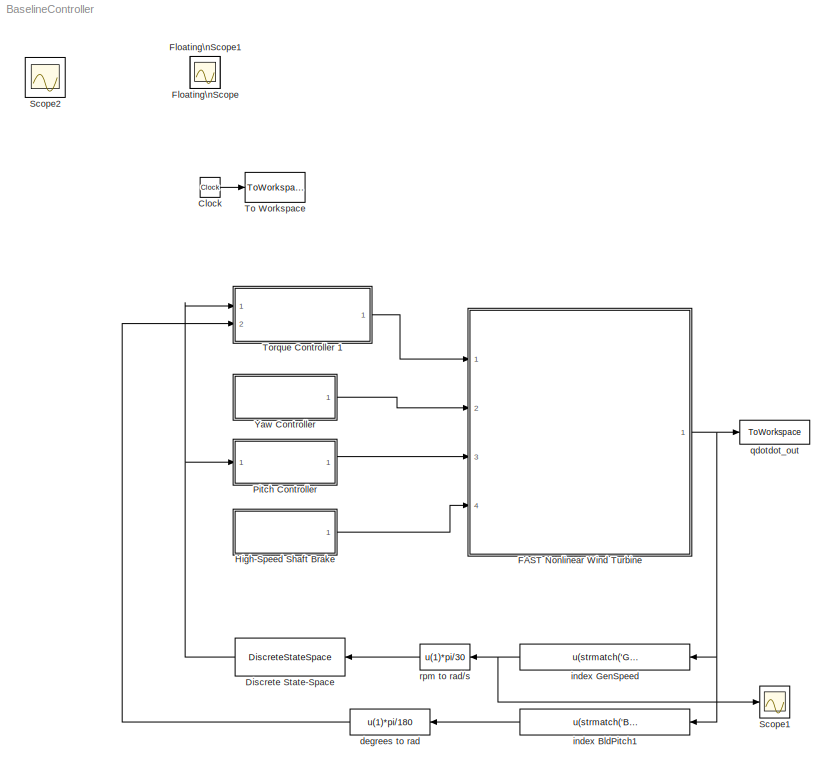
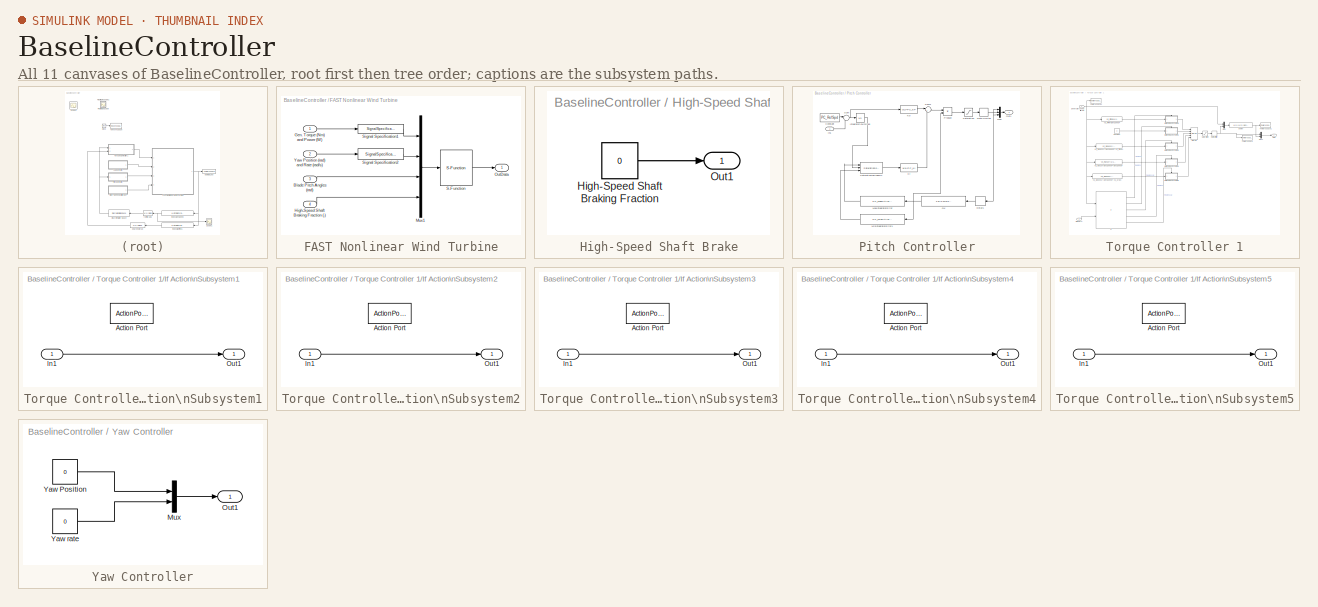
[diagram: thumbnail index - all 11 canvases of the model, root first then tree order]
MODEL BaselineController
KIND model
BLOCK [Clock] Clock
  SID = 91
BLOCK [DiscreteStateSpace] Discrete State-Space
  A = alpha
  B = 1-alpha
  C = alpha
  D = 1-alpha
  InitialCondition = 122.40808744489746
  SID = 168
  SampleTime = DT
BLOCK [SubSystem] FAST Nonlinear Wind Turbine
  Ports = [4, 1]
  RequestExecContextInheritance = off
  SID = 26
  Variant = off
BLOCK [Inport] FAST Nonlinear Wind Turbine/Blade Pitch Angles (rad)
  IconDisplay = Port number
  Port = 3
  SID = 29
BLOCK [Inport] FAST Nonlinear Wind Turbine/Gen. Torque (Nm) and Power (W)
  IconDisplay = Port number
  SID = 27
BLOCK [Inport] FAST Nonlinear Wind Turbine/High-Speed Shaft Braking Fraction (-)
  IconDisplay = Port number
  Port = 4
  SID = 30
BLOCK [Mux] FAST Nonlinear Wind Turbine/Mux1
  DisplayOption = bar
  Ports = [4, 1]
  SID = 31
BLOCK [Outport] FAST Nonlinear Wind Turbine/OutData
  IconDisplay = Port number
  SID = 35
BLOCK [S-Function] FAST Nonlinear Wind Turbine/S-Function
  EnableBusSupport = off
  FunctionName = FAST_SFunc
  Parameters = FAST_InputFileName, TMax, 0
  Ports = [1, 1]
  SFcnIsStateOwnerBlock = off
  SFunctionDeploymentMode = off
  SID = 32
BLOCK [SignalSpecification] FAST Nonlinear Wind Turbine/Signal Specification1
  Dimensions = 2
  OutDataTypeStr = double
  SID = 33
  SignalType = real
BLOCK [SignalSpecification] FAST Nonlinear Wind Turbine/Signal Specification2
  Dimensions = 2
  OutDataTypeStr = double
  SID = 34
  SignalType = real
BLOCK [Inport] FAST Nonlinear Wind Turbine/Yaw Position (rad) and Rate (rad//s)
  IconDisplay = Port number
  Port = 2
  SID = 28
BLOCK [Scope] Floating\nScope
  IOType = viewer
  NumInputPorts = 1
  Ports = []
  SID = 147
  ScopeSpecificationString = Simulink.scopes.TimeScopeBlockCfg('CurrentConfiguration', extmgr.ConfigurationSet(extmgr.Configuration('Core','General UI',true),extmgr.Configuration('Core','Source UI',true),extmgr.Configuration('Sources','WiredSimulink',true,'DataLoggingVariableName','ScopeData1','DataLoggingSaveFormat','StructureWithTime','DataLoggingLimitDataPoints',true,'DataLoggingDecimation','1','DataLoggingDecimateData',tr...<+929ch>
BLOCK [Scope] Floating\nScope1
  IOType = viewer
  NumInputPorts = 1
  Ports = []
  SID = 148
  ScopeSpecificationString = C++SS(StrPVP('Location','[207, 245, 1311, 700]'),StrPVP('Open','off'),MxPVP('AxesTitles',53,'struct(''axes1'',''%<SignalLabel>'')'),MxPVP('ScopeGraphics',56,'struct(''FigureColor'',''[0.5 0.5 0.5]'',''AxesColor'',''[0 0 0]'',''AxesTickColor'',''[1 1 1]'',''LineColors'',''[1 1 0;1 0 1;0 1 1;1 0 0;0 1 0;0 0 1]'',''LineStyles'',''-|-|-|-|-|-'',''LineWidths'',''[0.5 0.5 0.5 0.5 0.5 0.5]'',''MarkerStyl...<+278ch>
BLOCK [SubSystem] High-Speed Shaft Brake
  Ports = [0, 1]
  RequestExecContextInheritance = off
  SID = 45
  Variant = off
BLOCK [Constant] High-Speed Shaft Brake/High-Speed Shaft Braking Fraction
  SID = 46
  Value = 0
BLOCK [Outport] High-Speed Shaft Brake/Out1
  IconDisplay = Port number
  SID = 47
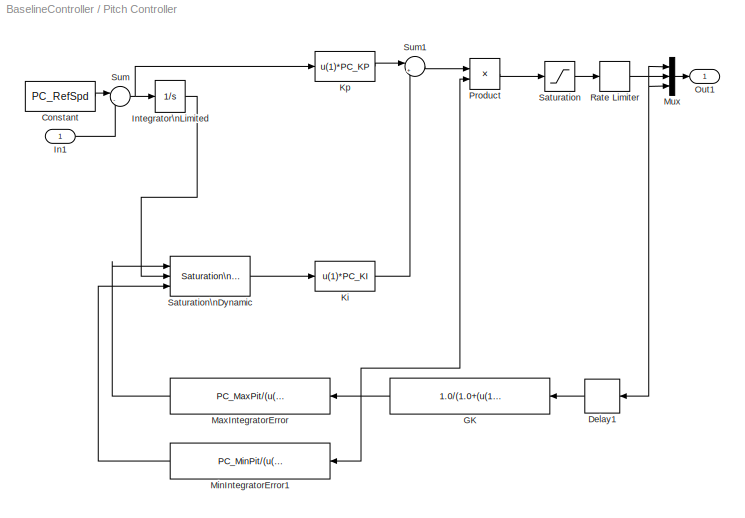
BLOCK [SubSystem] Pitch Controller
  Ports = [1, 1]
  RequestExecContextInheritance = off
  SID = 48
  Variant = off
BLOCK [Constant] Pitch Controller/Constant
  SID = 111
  Value = PC_RefSpd
BLOCK [Delay] Pitch Controller/Delay1
  DelayLength = 1
  InitialCondition = 0
  InputPortMap = u0
  Ports = [1, 1]
  SID = 141
  SampleTime = DT
  UseCircularBuffer = on
BLOCK [Fcn] Pitch Controller/GK
  Expr = 1.0/(1.0+(u(1)/PC_KK))
  SID = 135
BLOCK [Inport] Pitch Controller/In1
  IconDisplay = Port number
  SID = 112
BLOCK [Integrator] Pitch Controller/Integrator\nLimited
  LowerSaturationLimit = PC_MinPit
  Ports = [1, 1]
  SID = 115
  UpperSaturationLimit = PC_MaxPit
BLOCK [Fcn] Pitch Controller/Ki
  Expr = u(1)*PC_KI
  SID = 131
BLOCK [Fcn] Pitch Controller/Kp
  Expr = u(1)*PC_KP
  SID = 127
BLOCK [Fcn] Pitch Controller/MaxIntegratorError
  Expr = PC_MaxPit/(u(1)*PC_KI)
  SID = 126
BLOCK [Fcn] Pitch Controller/MinIntegratorError1
  Expr = PC_MinPit/(u(1)*PC_KI)
  SID = 138
BLOCK [Mux] Pitch Controller/Mux
  DisplayOption = bar
  Inputs = 3
  Ports = [3, 1]
  SID = 136
BLOCK [Outport] Pitch Controller/Out1
  IconDisplay = Port number
  SID = 50
BLOCK [Product] Pitch Controller/Product
  InputSameDT = off
  OutDataTypeStr = Inherit: Inherit via internal rule
  Ports = [2, 1]
  RndMeth = Floor
  SID = 129
  SaturateOnIntegerOverflow = off
BLOCK [RateLimiter] Pitch Controller/Rate Limiter
  FallingSlewLimit = -PC_MaxRat
  RisingSlewLimit = PC_MaxRat
  SID = 132
  SampleTimeMode = inherited
BLOCK [Saturate] Pitch Controller/Saturation
  InputPortMap = u0
  LowerLimit = PC_MinPit
  Ports = [1, 1]
  SID = 133
  UpperLimit = PC_MaxPit
BLOCK [Reference] Pitch Controller/Saturation\nDynamic  REF=simulink/Discontinuities/Saturation\nDynamic
  DoSatur = off
  LockScale = off
  OutDataType = fixdt(1, 16)
  OutDataTypeStr = Inherit: Same as second input
  OutMax = []
  OutMin = []
  OutScaling = 2^-10
  OutputDataTypeScalingMode = Same as second input
  Ports = [3, 1]
  RndMeth = Floor
  SID = 139
  SourceBlock = simulink/Discontinuities/Saturation\nDynamic
  SourceProductBaseCode = SL
  SourceProductName = Simulink
  SourceType = Saturation Dynamic
BLOCK [Sum] Pitch Controller/Sum
  IconShape = round
  InputSameDT = off
  Inputs = |-+
  OutDataTypeStr = Inherit: Inherit via internal rule
  Ports = [2, 1]
  SID = 113
  SaturateOnIntegerOverflow = off
BLOCK [Sum] Pitch Controller/Sum1
  IconShape = round
  InputSameDT = off
  Inputs = |++
  OutDataTypeStr = Inherit: Inherit via internal rule
  Ports = [2, 1]
  SID = 130
  SaturateOnIntegerOverflow = off
BLOCK [Scope] Scope1
  NumInputPorts = 1
  Ports = [1]
  SID = 56
  ScopeSpecificationString = C++SS(StrPVP('Location','[1, 574, 936, 1079]'),StrPVP('Open','off'),StrPVP('ZoomMode','yonly'),MxPVP('AxesTitles',53,'struct(''axes1'',''%<SignalLabel>'')'),MxPVP('ScopeGraphics',56,'struct(''FigureColor'',''[0.5 0.5 0.5]'',''AxesColor'',''[0 0 0]'',''AxesTickColor'',''[1 1 1]'',''LineColors'',''[1 1 0;1 0 1;0 1 1;1 0 0;0 1 0;0 0 1]'',''LineStyles'',''-|-|-|-|-|-'',''LineWidths'',''[0.5 0.5 0.5 0....<+308ch>
BLOCK [Scope] Scope2
  IOType = viewer
  NumInputPorts = 1
  Ports = []
  SID = 93
  ScopeSpecificationString = Simulink.scopes.TimeScopeBlockCfg('CurrentConfiguration', extmgr.ConfigurationSet(extmgr.Configuration('Core','General UI',true),extmgr.Configuration('Core','Source UI',true),extmgr.Configuration('Sources','WiredSimulink',true,'DataLoggingVariableName','ScopeData1','DataLoggingMaxPoints','7500','DataLoggingLimitDataPoints',true,'DataLoggingSaveFormat','Array','DataLoggingDecimation','1','DataLoggi...<+1668ch>
BLOCK [ToWorkspace] To Workspace
  MaxDataPoints = inf
  Ports = [1]
  SID = 92
  SampleTime = -1
  VariableName = Time
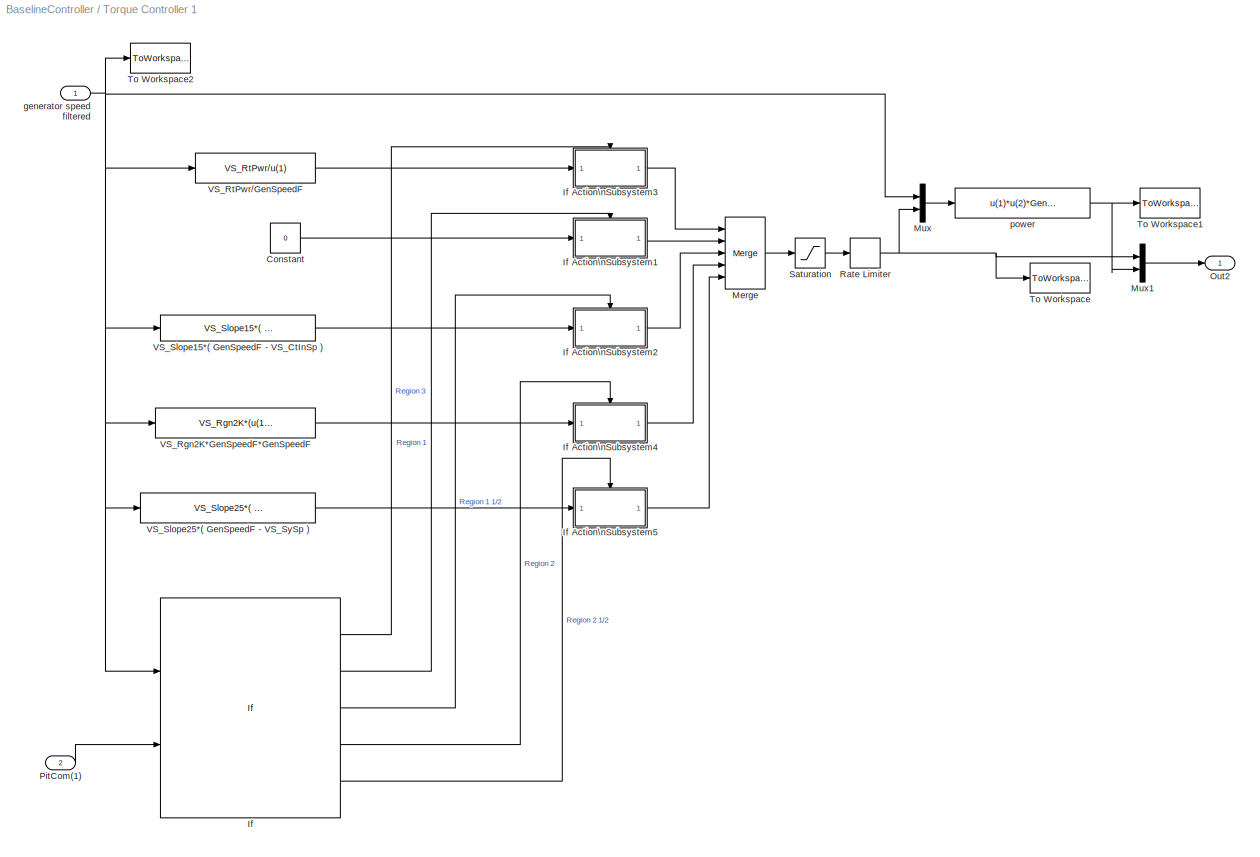
BLOCK [SubSystem] Torque Controller 1
  Ports = [2, 1]
  RequestExecContextInheritance = off
  SID = 1
  Variant = off
BLOCK [Constant] Torque Controller 1/Constant
  SID = 75
  Value = 0
BLOCK [If] Torque Controller 1/If
  ElseIfExpressions = u1< VS_CtInSp, u1 < VS_Rgn2Sp, u1 < VS_TrGnSp
  IfExpression = u1 >= VS_RtGnSp | u2>= VS_Rgn3MP
  NumInputs = 2
  Ports = [2, 5]
  SID = 3
BLOCK [SubSystem] Torque Controller 1/If Action\nSubsystem1
  Ports = [1, 1, 0, 0, 0, 0, 0, 1]
  RequestExecContextInheritance = off
  SID = 8
  TreatAsAtomicUnit = on
  Variant = off
BLOCK [ActionPort] Torque Controller 1/If Action\nSubsystem1/Action Port
  ActionType = elseif
  SID = 10
BLOCK [Inport] Torque Controller 1/If Action\nSubsystem1/In1
  IconDisplay = Port number
  SID = 9
BLOCK [Outport] Torque Controller 1/If Action\nSubsystem1/Out1
  IconDisplay = Port number
  SID = 11
BLOCK [SubSystem] Torque Controller 1/If Action\nSubsystem2
  Ports = [1, 1, 0, 0, 0, 0, 0, 1]
  RequestExecContextInheritance = off
  SID = 12
  TreatAsAtomicUnit = on
  Variant = off
BLOCK [ActionPort] Torque Controller 1/If Action\nSubsystem2/Action Port
  ActionType = elseif
  SID = 14
BLOCK [Inport] Torque Controller 1/If Action\nSubsystem2/In1
  IconDisplay = Port number
  SID = 13
BLOCK [Outport] Torque Controller 1/If Action\nSubsystem2/Out1
  IconDisplay = Port number
  SID = 15
BLOCK [SubSystem] Torque Controller 1/If Action\nSubsystem3
  Ports = [1, 1, 0, 0, 0, 0, 0, 1]
  RequestExecContextInheritance = off
  SID = 66
  TreatAsAtomicUnit = on
  Variant = off
BLOCK [ActionPort] Torque Controller 1/If Action\nSubsystem3/Action Port
  ActionType = then
  SID = 68
BLOCK [Inport] Torque Controller 1/If Action\nSubsystem3/In1
  IconDisplay = Port number
  SID = 67
BLOCK [Outport] Torque Controller 1/If Action\nSubsystem3/Out1
  IconDisplay = Port number
  SID = 69
BLOCK [SubSystem] Torque Controller 1/If Action\nSubsystem4
  Ports = [1, 1, 0, 0, 0, 0, 0, 1]
  RequestExecContextInheritance = off
  SID = 70
  TreatAsAtomicUnit = on
  Variant = off
BLOCK [ActionPort] Torque Controller 1/If Action\nSubsystem4/Action Port
  ActionType = elseif
  SID = 72
BLOCK [Inport] Torque Controller 1/If Action\nSubsystem4/In1
  IconDisplay = Port number
  SID = 71
BLOCK [Outport] Torque Controller 1/If Action\nSubsystem4/Out1
  IconDisplay = Port number
  SID = 73
BLOCK [SubSystem] Torque Controller 1/If Action\nSubsystem5
  Ports = [1, 1, 0, 0, 0, 0, 0, 1]
  RequestExecContextInheritance = off
  SID = 77
  TreatAsAtomicUnit = on
  Variant = off
BLOCK [ActionPort] Torque Controller 1/If Action\nSubsystem5/Action Port
  ActionType = else
  SID = 79
BLOCK [Inport] Torque Controller 1/If Action\nSubsystem5/In1
  IconDisplay = Port number
  SID = 78
BLOCK [Outport] Torque Controller 1/If Action\nSubsystem5/Out1
  IconDisplay = Port number
  SID = 80
BLOCK [Merge] Torque Controller 1/Merge
  Inputs = 5
  Ports = [5, 1]
  SID = 16
BLOCK [Mux] Torque Controller 1/Mux
  DisplayOption = bar
  Inputs = 2
  Ports = [2, 1]
  SID = 103
BLOCK [Mux] Torque Controller 1/Mux1
  DisplayOption = bar
  Inputs = 2
  Ports = [2, 1]
  SID = 104
BLOCK [Outport] Torque Controller 1/Out2
  IconDisplay = Port number
  SID = 25
BLOCK [Inport] Torque Controller 1/PitCom(1)
  IconDisplay = Port number
  Port = 2
  SID = 98
BLOCK [RateLimiter] Torque Controller 1/Rate Limiter
  FallingSlewLimit = -VS_MaxRat
  RisingSlewLimit = VS_MaxRat
  SID = 86
  SampleTimeMode = inherited
BLOCK [Saturate] Torque Controller 1/Saturation
  InputPortMap = u0
  LowerLimit = 0
  Ports = [1, 1]
  SID = 85
  UpperLimit = VS_MaxTq
BLOCK [ToWorkspace] Torque Controller 1/To Workspace
  MaxDataPoints = inf
  Ports = [1]
  SID = 156
  SampleTime = -1
  VariableName = generatorout
BLOCK [ToWorkspace] Torque Controller 1/To Workspace1
  MaxDataPoints = inf
  Ports = [1]
  SID = 157
  SampleTime = -1
  VariableName = powerout
BLOCK [ToWorkspace] Torque Controller 1/To Workspace2
  MaxDataPoints = inf
  Ports = [1]
  SID = 158
  SampleTime = -1
  VariableName = gsfiltered
BLOCK [Fcn] Torque Controller 1/VS_Rgn2K*GenSpeedF*GenSpeedF
  Expr = VS_Rgn2K*(u(1)^2)
  SID = 81
BLOCK [Fcn] Torque Controller 1/VS_RtPwr//GenSpeedF
  Expr = VS_RtPwr/u(1)
  SID = 74
BLOCK [Fcn] Torque Controller 1/VS_Slope15*( GenSpeedF - VS_CtInSp )
  Expr = VS_Slope15*( u(1) - VS_CtInSp )
  SID = 76
BLOCK [Fcn] Torque Controller 1/VS_Slope25*( GenSpeedF - VS_SySp )
  Expr = VS_Slope25*( u(1) - VS_SySp )
  SID = 84
BLOCK [Inport] Torque Controller 1/generator speed filtered
  IconDisplay = Port number
  SID = 2
BLOCK [Fcn] Torque Controller 1/power
  Expr = u(1)*u(2)*GenEff/100
  SID = 101
BLOCK [SubSystem] Yaw Controller
  Ports = [0, 1]
  RequestExecContextInheritance = off
  SID = 51
  Variant = off
BLOCK [Mux] Yaw Controller/Mux
  DisplayOption = bar
  Inputs = 2
  Ports = [2, 1]
  SID = 52
BLOCK [Outport] Yaw Controller/Out1
  IconDisplay = Port number
  SID = 55
BLOCK [Constant] Yaw Controller/Yaw Position
  SID = 53
  Value = 0
BLOCK [Constant] Yaw Controller/Yaw rate
  SID = 54
  Value = 0
BLOCK [Fcn] degrees to rad
  Expr = u(1)*pi/180
  SID = 100
BLOCK [Fcn] index BldPitch1
  Expr = u(strmatch('BldPitch1', OutList))
  SID = 99
BLOCK [Fcn] index GenSpeed
  Expr = u(strmatch('GenSpeed', OutList))
  SID = 87
BLOCK [ToWorkspace] qdotdot_out
  MaxDataPoints = inf
  Ports = [1]
  SID = 57
  SampleTime = -1
  VariableName = OutData
BLOCK [Fcn] rpm to rad//s
  Expr = u(1)*pi/30
  SID = 88
  SampleTime = DT
LINE Clock:1 -> To Workspace:1
NET Discrete State-Space:1 -> Pitch Controller:1, Torque Controller 1:1
LINE FAST Nonlinear Wind Turbine/Blade Pitch Angles (rad):1 -> FAST Nonlinear Wind Turbine/Mux1:3
LINE FAST Nonlinear Wind Turbine/Gen. Torque (Nm) and Power (W):1 -> FAST Nonlinear Wind Turbine/Signal Specification1:1
LINE FAST Nonlinear Wind Turbine/High-Speed Shaft Braking Fraction (-):1 -> FAST Nonlinear Wind Turbine/Mux1:4
LINE FAST Nonlinear Wind Turbine/Mux1:1 -> FAST Nonlinear Wind Turbine/S-Function:1
LINE FAST Nonlinear Wind Turbine/S-Function:1 -> FAST Nonlinear Wind Turbine/OutData:1
LINE FAST Nonlinear Wind Turbine/Signal Specification1:1 -> FAST Nonlinear Wind Turbine/Mux1:1
LINE FAST Nonlinear Wind Turbine/Signal Specification2:1 -> FAST Nonlinear Wind Turbine/Mux1:2
LINE FAST Nonlinear Wind Turbine/Yaw Position (rad) and Rate (rad//s):1 -> FAST Nonlinear Wind Turbine/Signal Specification2:1
NET FAST Nonlinear Wind Turbine:1 -> index BldPitch1:1, index GenSpeed:1, qdotdot_out:1
LINE High-Speed Shaft Brake/High-Speed Shaft Braking Fraction:1 -> High-Speed Shaft Brake/Out1:1
LINE High-Speed Shaft Brake:1 -> FAST Nonlinear Wind Turbine:4
LINE Pitch Controller/Constant:1 -> Pitch Controller/Sum:1
LINE Pitch Controller/Delay1:1 -> Pitch Controller/GK:1
NET Pitch Controller/GK:1 -> Pitch Controller/MaxIntegratorError:1, Pitch Controller/MinIntegratorError1:1, Pitch Controller/Product:2
LINE Pitch Controller/In1:1 -> Pitch Controller/Sum:2
LINE Pitch Controller/Integrator\nLimited:1 -> Pitch Controller/Saturation\nDynamic:2
LINE Pitch Controller/Ki:1 -> Pitch Controller/Sum1:2
LINE Pitch Controller/Kp:1 -> Pitch Controller/Sum1:1
LINE Pitch Controller/MaxIntegratorError:1 -> Pitch Controller/Saturation\nDynamic:1
LINE Pitch Controller/MinIntegratorError1:1 -> Pitch Controller/Saturation\nDynamic:3
LINE Pitch Controller/Mux:1 -> Pitch Controller/Out1:1
LINE Pitch Controller/Product:1 -> Pitch Controller/Saturation:1
NET Pitch Controller/Rate Limiter:1 -> Pitch Controller/Delay1:1, Pitch Controller/Mux:1, Pitch Controller/Mux:2, Pitch Controller/Mux:3
LINE Pitch Controller/Saturation:1 -> Pitch Controller/Rate Limiter:1
LINE Pitch Controller/Saturation\nDynamic:1 -> Pitch Controller/Ki:1
LINE Pitch Controller/Sum1:1 -> Pitch Controller/Product:1
NET Pitch Controller/Sum:1 -> Pitch Controller/Integrator\nLimited:1, Pitch Controller/Kp:1
LINE Pitch Controller:1 -> FAST Nonlinear Wind Turbine:3
LINE Torque Controller 1/Constant:1 -> Torque Controller 1/If Action\nSubsystem1:1
LINE Torque Controller 1/If Action\nSubsystem1/In1:1 -> Torque Controller 1/If Action\nSubsystem1/Out1:1
LINE Torque Controller 1/If Action\nSubsystem1:1 -> Torque Controller 1/Merge:2
LINE Torque Controller 1/If Action\nSubsystem2/In1:1 -> Torque Controller 1/If Action\nSubsystem2/Out1:1
LINE Torque Controller 1/If Action\nSubsystem2:1 -> Torque Controller 1/Merge:3
LINE Torque Controller 1/If Action\nSubsystem3/In1:1 -> Torque Controller 1/If Action\nSubsystem3/Out1:1
LINE Torque Controller 1/If Action\nSubsystem3:1 -> Torque Controller 1/Merge:1
LINE Torque Controller 1/If Action\nSubsystem4/In1:1 -> Torque Controller 1/If Action\nSubsystem4/Out1:1
LINE Torque Controller 1/If Action\nSubsystem4:1 -> Torque Controller 1/Merge:4
LINE Torque Controller 1/If Action\nSubsystem5/In1:1 -> Torque Controller 1/If Action\nSubsystem5/Out1:1
LINE Torque Controller 1/If Action\nSubsystem5:1 -> Torque Controller 1/Merge:5
LINE Torque Controller 1/If:1 -> Torque Controller 1/If Action\nSubsystem3:ifaction
LINE Torque Controller 1/If:2 -> Torque Controller 1/If Action\nSubsystem1:ifaction
LINE Torque Controller 1/If:3 -> Torque Controller 1/If Action\nSubsystem2:ifaction
LINE Torque Controller 1/If:4 -> Torque Controller 1/If Action\nSubsystem4:ifaction
LINE Torque Controller 1/If:5 -> Torque Controller 1/If Action\nSubsystem5:ifaction
LINE Torque Controller 1/Merge:1 -> Torque Controller 1/Saturation:1
LINE Torque Controller 1/Mux1:1 -> Torque Controller 1/Out2:1
LINE Torque Controller 1/Mux:1 -> Torque Controller 1/power:1
LINE Torque Controller 1/PitCom(1):1 -> Torque Controller 1/If:2
NET Torque Controller 1/Rate Limiter:1 -> Torque Controller 1/Mux1:1, Torque Controller 1/Mux:2, Torque Controller 1/To Workspace:1
LINE Torque Controller 1/Saturation:1 -> Torque Controller 1/Rate Limiter:1
LINE Torque Controller 1/VS_Rgn2K*GenSpeedF*GenSpeedF:1 -> Torque Controller 1/If Action\nSubsystem4:1
LINE Torque Controller 1/VS_RtPwr//GenSpeedF:1 -> Torque Controller 1/If Action\nSubsystem3:1
LINE Torque Controller 1/VS_Slope15*( GenSpeedF - VS_CtInSp ):1 -> Torque Controller 1/If Action\nSubsystem2:1
LINE Torque Controller 1/VS_Slope25*( GenSpeedF - VS_SySp ):1 -> Torque Controller 1/If Action\nSubsystem5:1
NET Torque Controller 1/generator speed filtered:1 -> Torque Controller 1/If:1, Torque Controller 1/Mux:1, Torque Controller 1/To Workspace2:1, Torque Controller 1/VS_Rgn2K*GenSpeedF*GenSpeedF:1, Torque Controller 1/VS_RtPwr//GenSpeedF:1, Torque Controller 1/VS_Slope15*( GenSpeedF - VS_CtInSp ):1, Torque Controller 1/VS_Slope25*( GenSpeedF - VS_SySp ):1
NET Torque Controller 1/power:1 -> Torque Controller 1/Mux1:2, Torque Controller 1/To Workspace1:1
LINE Torque Controller 1:1 -> FAST Nonlinear Wind Turbine:1
LINE Yaw Controller/Mux:1 -> Yaw Controller/Out1:1
LINE Yaw Controller/Yaw Position:1 -> Yaw Controller/Mux:1
LINE Yaw Controller/Yaw rate:1 -> Yaw Controller/Mux:2
LINE Yaw Controller:1 -> FAST Nonlinear Wind Turbine:2
LINE degrees to rad:1 -> Torque Controller 1:2
LINE index BldPitch1:1 -> degrees to rad:1
NET index GenSpeed:1 -> Scope1:1, rpm to rad//s:1
LINE rpm to rad//s:1 -> Discrete State-Space:1
note: NET lines group one-source signal fan-out (src -> all destinations, sorted); 1:1 wires keep LINE
